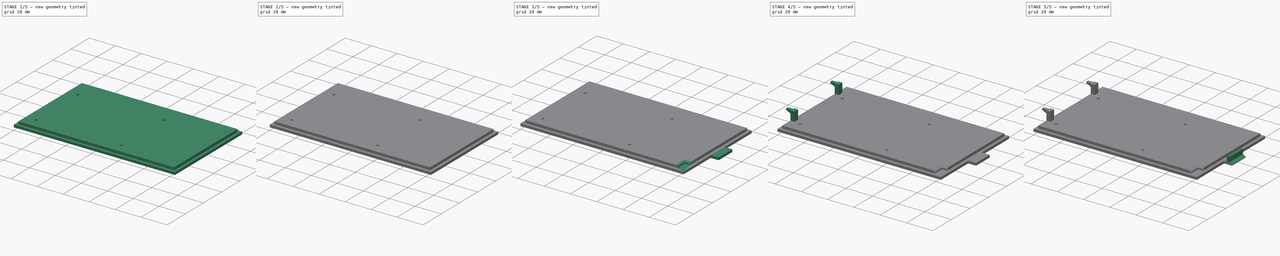
[diagram: build sequence overview — one tinted view per stage of 5, left to right]
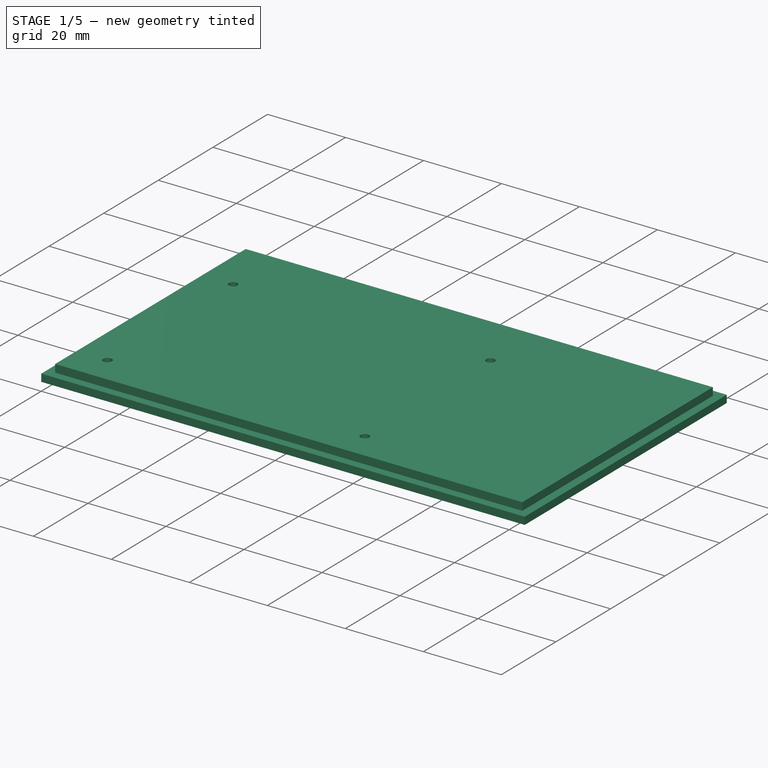
[diagram: stage 1 of 5 — iso view after this stage's code; geometry added in this stage tinted green]
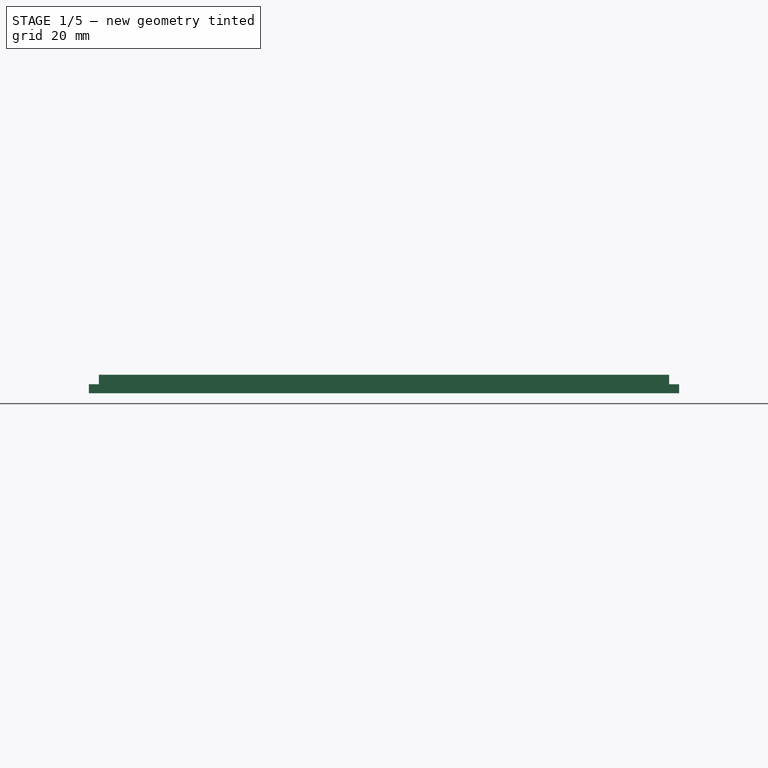
[diagram: stage 1 of 5 — front view after this stage's code; geometry added in this stage tinted green]
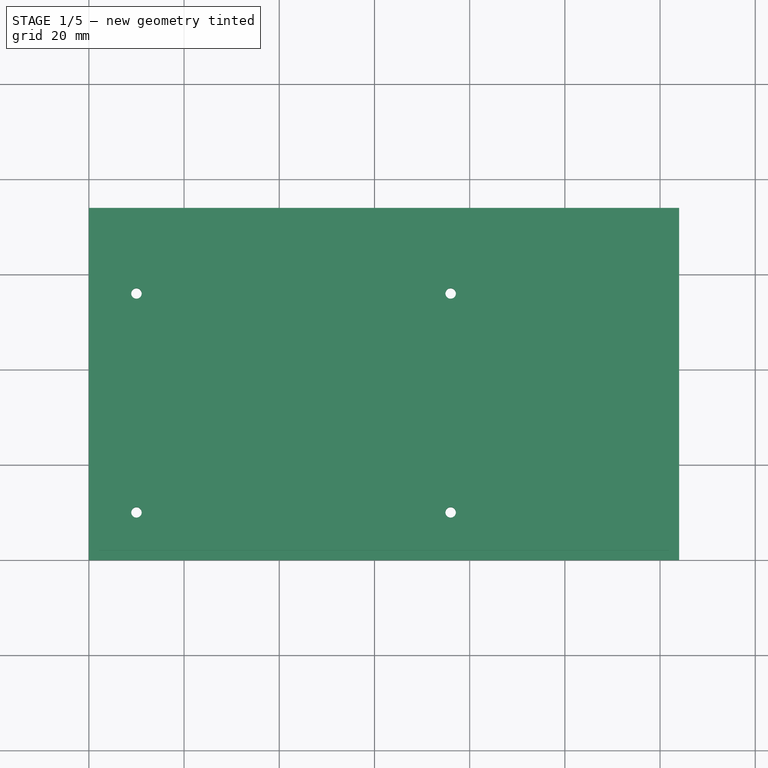
[diagram: stage 1 of 5 — top view after this stage's code; geometry added in this stage tinted green]
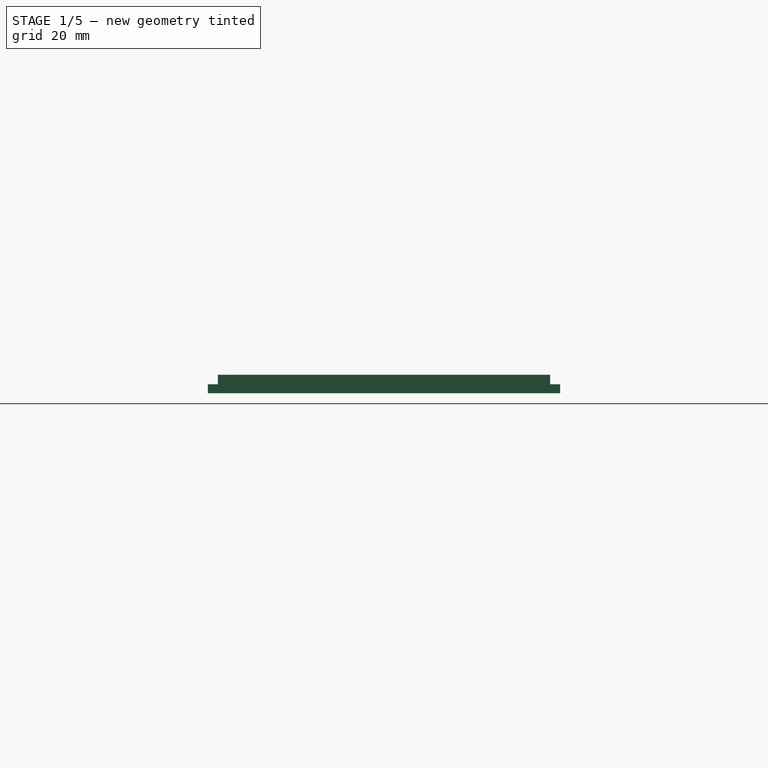
[diagram: stage 1 of 5 — right view after this stage's code; geometry added in this stage tinted green]
FCSTD DOCUMENT  (FreeCAD 0.19R24276 (Git))
Label: Airlogger Case Floor
License: All rights reserved
LicenseURL: http://en.wikipedia.org/wiki/All_rights_reserved
objects: Sketcher::SketchObject×8, PartDesign::Pad×6, PartDesign::Hole×4, PartDesign::Chamfer×3, PartDesign::Pocket×2, PartDesign::Fillet×1, PartDesign::Body×1
note: 41 computed .brp shape members not serialized (recipe doc carries the construction recipe); baked Part::Feature solids carry a one-line shape summary decoded from their .brp

FEATURE [Sketcher::SketchObject] Sketch
  FullyConstrained = true
  MapMode = 5
  Support = -> [XY_Plane]
  sketch-geometry (4):
    g0: LineSegment StartX=0 StartY=74 StartZ=0 EndX=124 EndY=74 EndZ=0
    g1: LineSegment StartX=124 StartY=74 StartZ=0 EndX=124 EndY=0 EndZ=0
    g2: LineSegment StartX=124 StartY=0 StartZ=0 EndX=0 EndY=0 EndZ=0
    g3: LineSegment StartX=0 StartY=0 StartZ=0 EndX=0 EndY=74 EndZ=0
  constraints (11):
    c: Coincident(g0,g1)
    c: Coincident(g1,g2)
    c: Coincident(g2,g3)
    c: Coincident(g3,g0)
    c: Horizontal(g0)
    c: Horizontal(g2)
    c: Vertical(g1)
    c: Vertical(g3)
    c: Coincident(g2,g-1)
    c: DistanceX(g0,g0) = 124
    c: DistanceY(g1,g1) = 74
FEATURE [PartDesign::Pad] Pad
  Direction = (1,1,1)
  Length = 1.9
  Length2 = 100
  Profile = -> Sketch
  Refine = true
  Type = 0
FEATURE [Sketcher::SketchObject] Sketch001
  FullyConstrained = true
  MapMode = 5
  Placement = pos=(0,0,1.9) rot=(0,0,1;0rad)
  Support = -> [Pad]
  sketch-geometry (4):
    g0: LineSegment StartX=2.1 StartY=71.9 StartZ=0 EndX=121.9 EndY=71.9 EndZ=0
    g1: LineSegment StartX=121.9 StartY=71.9 StartZ=0 EndX=121.9 EndY=2.1 EndZ=0
    g2: LineSegment StartX=121.9 StartY=2.1 StartZ=0 EndX=2.1 EndY=2.1 EndZ=0
    g3: LineSegment StartX=2.1 StartY=2.1 StartZ=0 EndX=2.1 EndY=71.9 EndZ=0
  constraints (12):
    c: Coincident(g0,g1)
    c: Coincident(g1,g2)
    c: Coincident(g2,g3)
    c: Coincident(g3,g0)
    c: Horizontal(g0)
    c: Horizontal(g2)
    c: Vertical(g1)
    c: Vertical(g3)
    c: DistanceX(g0,g0) = 119.8
    c: DistanceY(g1,g1) = 69.8
    c: DistanceY(g-1,g2) = 2.1
    c: DistanceX(g-1,g2) = 2.1
FEATURE [PartDesign::Pad] Pad001
  BaseFeature = -> Pad
  Direction = (1,1,1)
  Length = 2
  Length2 = 100
  Profile = -> Sketch001
  Refine = true
  Type = 0
FEATURE [Sketcher::SketchObject] Sketch002
  FullyConstrained = true
  MapMode = 5
  Placement = pos=(0,0,3.9) rot=(0,0,1;0rad)
  Support = -> [Pad001]
  sketch-geometry (4):
    g0: Circle CenterX=10 CenterY=56 CenterZ=0 NormalX=0 NormalY=0 NormalZ=1 AngleXU=0 Radius=1.1
    g1: Circle CenterX=76 CenterY=56 CenterZ=0 NormalX=0 NormalY=0 NormalZ=1 AngleXU=0 Radius=1.1
    g2: Circle CenterX=10 CenterY=10 CenterZ=0 NormalX=0 NormalY=0 NormalZ=1 AngleXU=0 Radius=1.1
    g3: Circle CenterX=76 CenterY=10 CenterZ=0 NormalX=0 NormalY=0 NormalZ=1 AngleXU=0 Radius=1.1
  constraints (12):
    c: Diameter(g0) = 2.2
    c: Equal(g0,g1) = 1
    c: Equal(g0,g2) = 1
    c: Equal(g0,g3) = 1
    c: Vertical(g2,g0)
    c: Horizontal(g1,g0)
    c: Vertical(g3,g1)
    c: Horizontal(g3,g2)
    c: DistanceX(g0,g1) = 66
    c: DistanceY(g2,g0) = 46
    c: DistanceX(g-1,g2) = 10
    c: DistanceY(g-1,g2) = 10
FEATURE [PartDesign::Pocket] Pocket
  BaseFeature = -> Pad001
  Length = 5
  Length2 = 100
  Profile = -> Sketch002
  Refine = true
  Type = 1
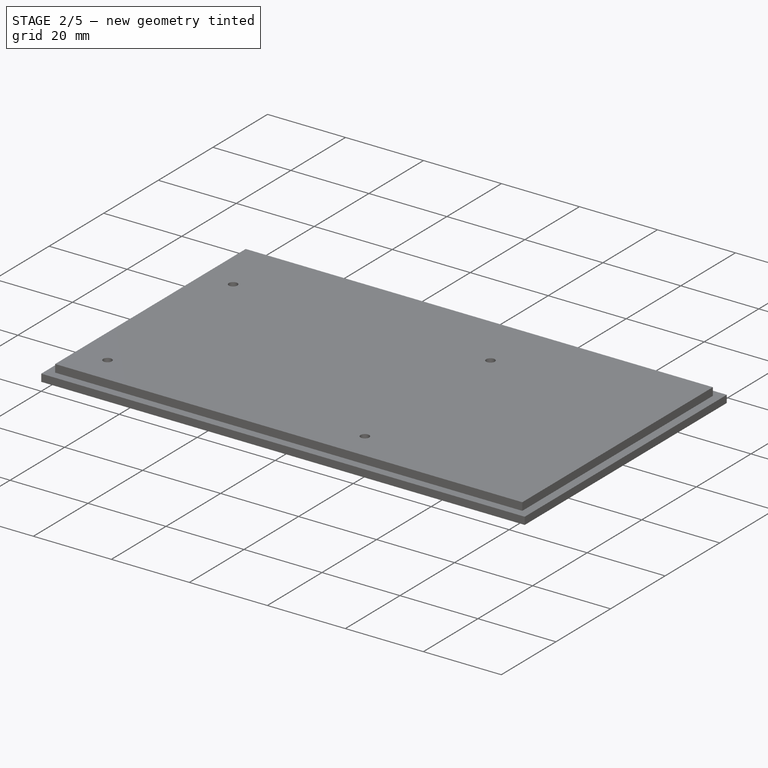
[diagram: stage 2 of 5 — iso view after this stage's code; geometry added in this stage tinted green]
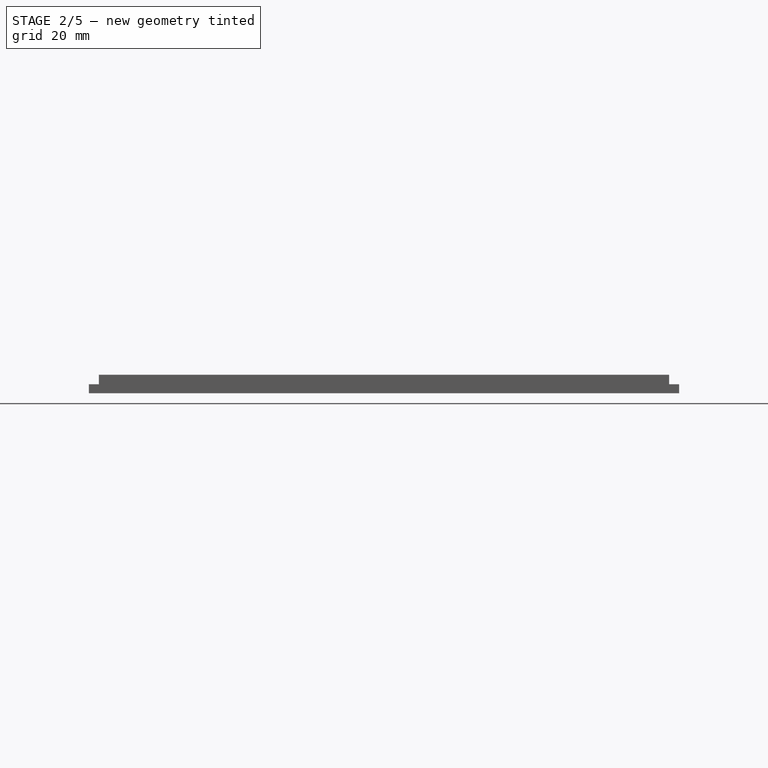
[diagram: stage 2 of 5 — front view after this stage's code; geometry added in this stage tinted green]
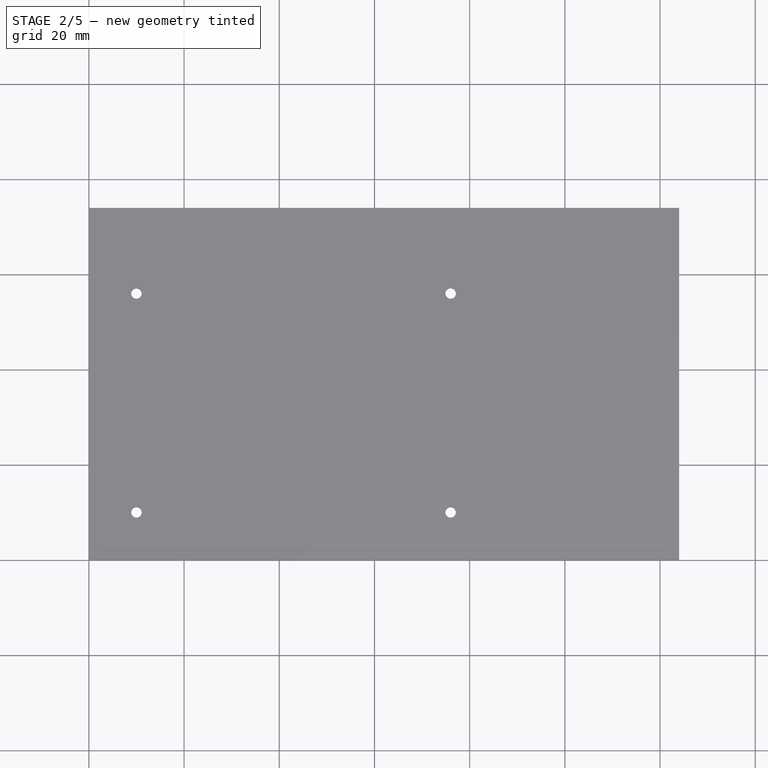
[diagram: stage 2 of 5 — top view after this stage's code; geometry added in this stage tinted green]
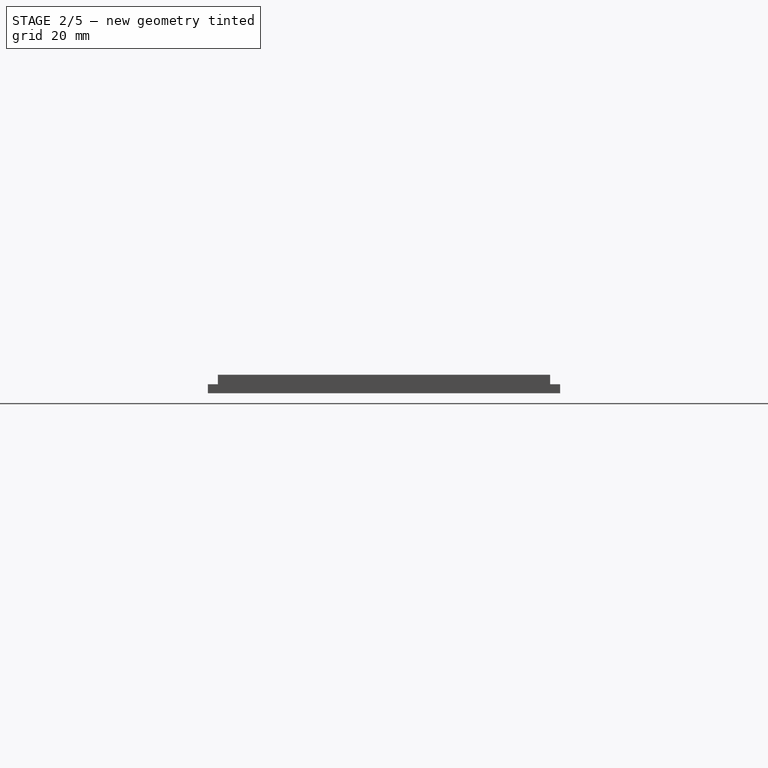
[diagram: stage 2 of 5 — right view after this stage's code; geometry added in this stage tinted green]
FEATURE [PartDesign::Hole] Hole
  BaseFeature = -> Pocket
  Depth = 1.5
  DepthType = 0
  Diameter = 4
  DrillForDepth = false
  DrillPoint = 0
  DrillPointAngle = 118
  HoleCutCountersinkAngle = 90
  HoleCutCustomValues = false
  HoleCutDepth = 0
  HoleCutDiameter = 6.1
  HoleCutType = 0
  ModelActualThread = false
  Profile = -> Pocket [Edge13]
  Refine = true
  Tapered = false
  TaperedAngle = 90
  ThreadAngle = 0
  ThreadClass = 0
  ThreadCutOffInner = 0
  ThreadCutOffOuter = 0
  ThreadDirection = 0
  ThreadFit = 0
  ThreadPitch = 0
  ThreadSize = 0
  ThreadType = 0
  Threaded = false
FEATURE [PartDesign::Hole] Hole001
  BaseFeature = -> Hole
  Depth = 1.5
  DepthType = 0
  Diameter = 4
  DrillForDepth = false
  DrillPoint = 0
  DrillPointAngle = 118
  HoleCutCountersinkAngle = 90
  HoleCutCustomValues = false
  HoleCutDepth = 0
  HoleCutDiameter = 6.1
  HoleCutType = 0
  ModelActualThread = false
  Profile = -> Hole [Edge12]
  Refine = true
  Tapered = false
  TaperedAngle = 90
  ThreadAngle = 0
  ThreadClass = 0
  ThreadCutOffInner = 0
  ThreadCutOffOuter = 0
  ThreadDirection = 0
  ThreadFit = 0
  ThreadPitch = 0
  ThreadSize = 0
  ThreadType = 0
  Threaded = false
FEATURE [PartDesign::Hole] Hole002
  BaseFeature = -> Hole001
  Depth = 1.5
  DepthType = 0
  Diameter = 4
  DrillForDepth = false
  DrillPoint = 0
  DrillPointAngle = 118
  HoleCutCountersinkAngle = 90
  HoleCutCustomValues = false
  HoleCutDepth = 0
  HoleCutDiameter = 6.1
  HoleCutType = 0
  ModelActualThread = false
  Profile = -> Hole001 [Edge14]
  Refine = true
  Tapered = false
  TaperedAngle = 90
  ThreadAngle = 0
  ThreadClass = 0
  ThreadCutOffInner = 0
  ThreadCutOffOuter = 0
  ThreadDirection = 0
  ThreadFit = 0
  ThreadPitch = 0
  ThreadSize = 0
  ThreadType = 0
  Threaded = false
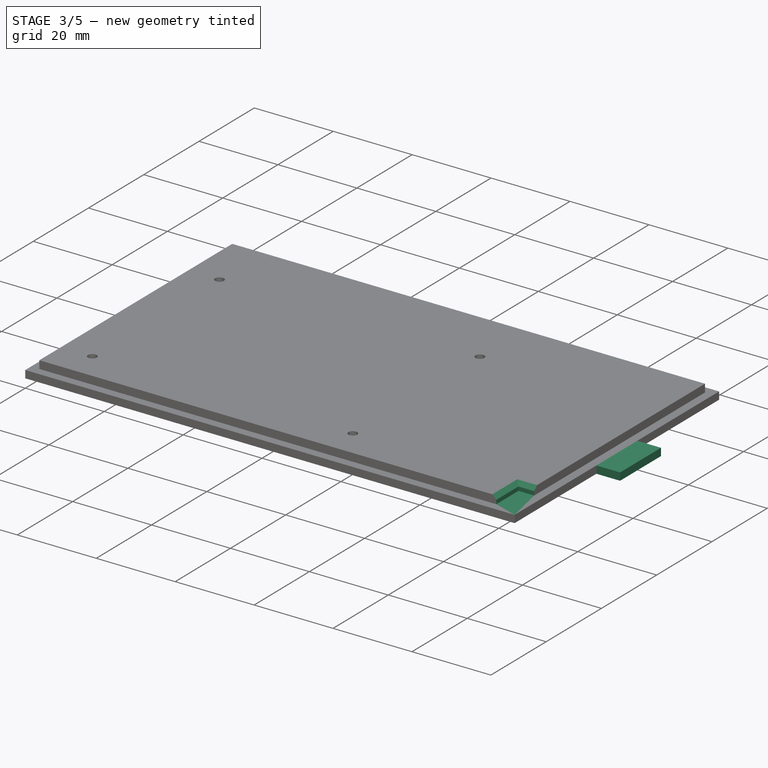
[diagram: stage 3 of 5 — iso view after this stage's code; geometry added in this stage tinted green]
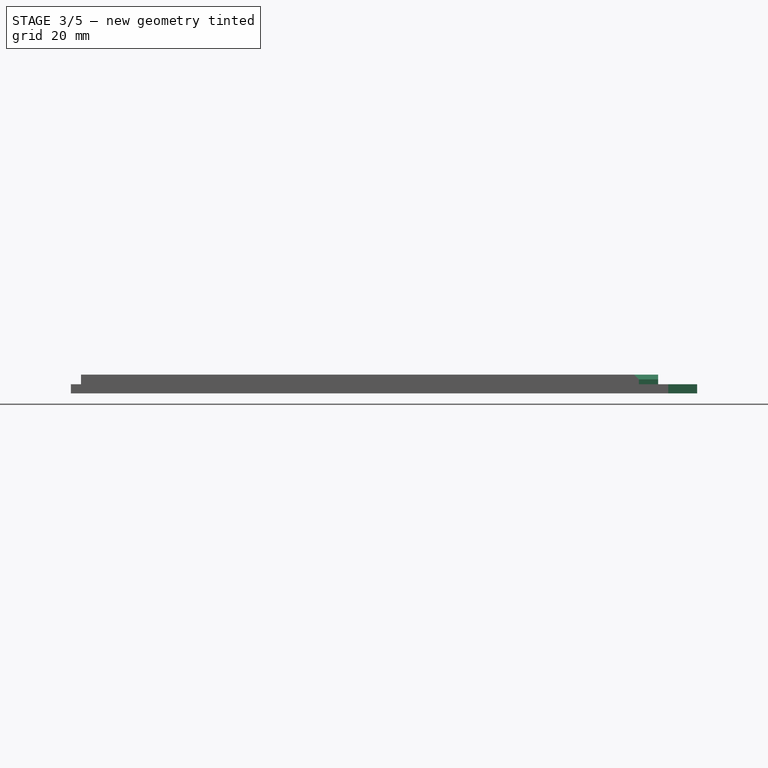
[diagram: stage 3 of 5 — front view after this stage's code; geometry added in this stage tinted green]
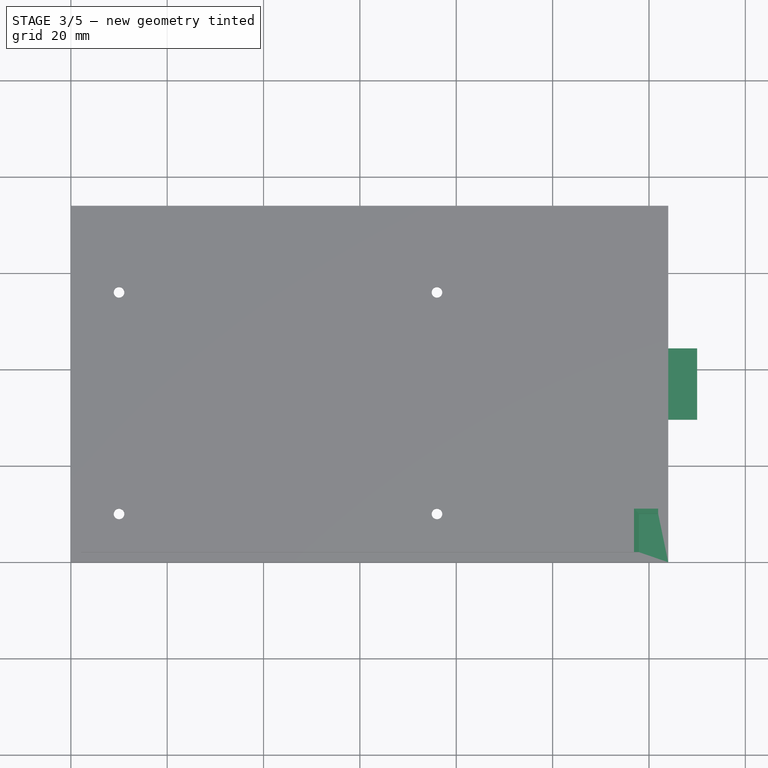
[diagram: stage 3 of 5 — top view after this stage's code; geometry added in this stage tinted green]
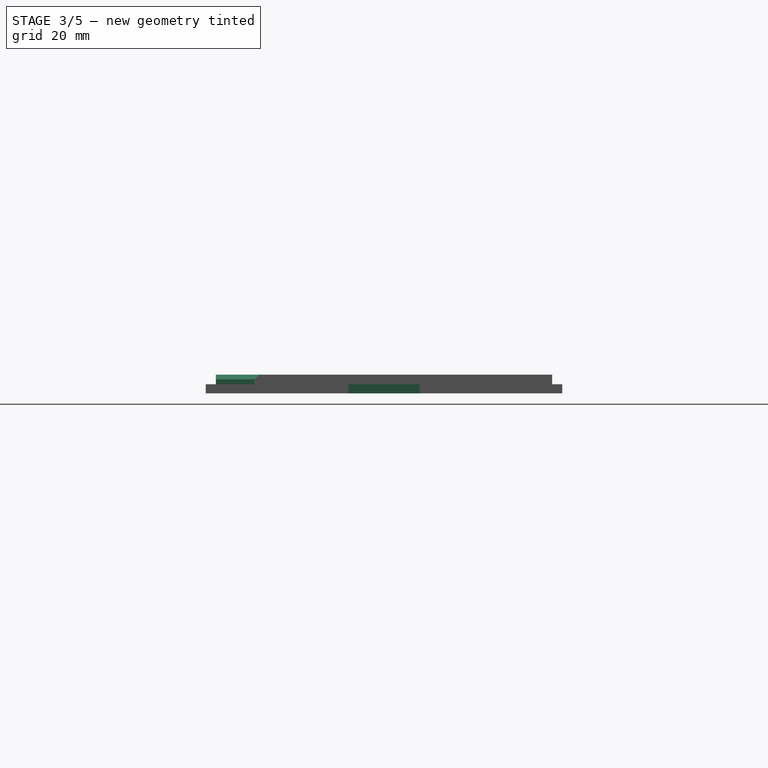
[diagram: stage 3 of 5 — right view after this stage's code; geometry added in this stage tinted green]
FEATURE [PartDesign::Hole] Hole003
  BaseFeature = -> Hole002
  Depth = 1.5
  DepthType = 0
  Diameter = 4
  DrillForDepth = false
  DrillPoint = 0
  DrillPointAngle = 118
  HoleCutCountersinkAngle = 90
  HoleCutCustomValues = false
  HoleCutDepth = 0
  HoleCutDiameter = 6.1
  HoleCutType = 0
  ModelActualThread = false
  Profile = -> Hole002 [Edge15]
  Refine = true
  Tapered = false
  TaperedAngle = 90
  ThreadAngle = 0
  ThreadClass = 0
  ThreadCutOffInner = 0
  ThreadCutOffOuter = 0
  ThreadDirection = 0
  ThreadFit = 0
  ThreadPitch = 0
  ThreadSize = 0
  ThreadType = 0
  Threaded = false
FEATURE [Sketcher::SketchObject] Sketch003
  ExternalGeometry = -> [Hole003]
  FullyConstrained = true
  MapMode = 5
  Placement = pos=(124,0,0) rot=(0.57735,0.57735,0.57735;2.0944rad)
  Support = -> [Hole003]
  sketch-geometry (6):
    g0: LineSegment StartX=29.6 StartY=0 StartZ=0 EndX=44.4 EndY=0 EndZ=0
    g1: LineSegment StartX=44.4 StartY=0 StartZ=0 EndX=44.4 EndY=1.9 EndZ=0
    g2: LineSegment StartX=44.4 StartY=1.9 StartZ=0 EndX=29.6 EndY=1.9 EndZ=0
    g3: LineSegment StartX=29.6 StartY=1.9 StartZ=0 EndX=29.6 EndY=0 EndZ=0
    g4: LineSegment StartX=29.6 StartY=0 StartZ=0 EndX=0 EndY=0 EndZ=0
    g5: LineSegment StartX=44.4 StartY=0 StartZ=0 EndX=74 EndY=0 EndZ=0
  constraints (16):
    c: Coincident(g0,g1)
    c: Coincident(g1,g2)
    c: Coincident(g2,g3)
    c: Coincident(g3,g0)
    c: Horizontal(g0)
    c: Horizontal(g2)
    c: Vertical(g1)
    c: Vertical(g3)
    c: PointOnObject(g0,g-3)
    c: DistanceX(g2,g2) = 14.8
    c: DistanceY(g1,g1) = 1.9
    c: Coincident(g4,g0)
    c: Coincident(g4,g-1)
    c: Coincident(g5,g0)
    c: Coincident(g5,g-3)
    c: Equal(g4,g5)
FEATURE [PartDesign::Pad] Pad002
  BaseFeature = -> Hole003
  Direction = (1,1,1)
  Length = 6
  Length2 = 100
  Profile = -> Sketch003
  Refine = true
  Type = 0
FEATURE [Sketcher::SketchObject] Sketch004
  ExternalGeometry = -> [Pad002]
  FullyConstrained = true
  MapMode = 5
  Placement = pos=(0,2.1,0) rot=(1,0,0;1.5708rad)
  Support = -> [Pad002]
  sketch-geometry (4):
    g0: LineSegment StartX=121.9 StartY=3.9 StartZ=0 EndX=117.9 EndY=3.9 EndZ=0
    g1: LineSegment StartX=117.9 StartY=3.9 StartZ=0 EndX=117.9 EndY=1.9 EndZ=0
    g2: LineSegment StartX=117.9 StartY=1.9 StartZ=0 EndX=121.9 EndY=1.9 EndZ=0
    g3: LineSegment StartX=121.9 StartY=1.9 StartZ=0 EndX=121.9 EndY=3.9 EndZ=0
  constraints (10):
    c: Coincident(g0,g1)
    c: Coincident(g1,g2)
    c: Coincident(g2,g3)
    c: Coincident(g3,g0)
    c: Horizontal(g0)
    c: Horizontal(g2)
    c: Vertical(g1)
    c: Coincident(g0,g-3)
    c: DistanceX(g0,g0) = 4
    c: Coincident(g2,g-3)
FEATURE [PartDesign::Pocket] Pocket001
  BaseFeature = -> Pad002
  Length = 8
  Length2 = 100
  Profile = -> Sketch004
  Refine = true
  Type = 0
FEATURE [PartDesign::Chamfer] Chamfer
  Angle = 45
  Base = -> Pocket001 [Edge56,Edge57]
  BaseFeature = -> Pocket001
  ChamferType = 0
  FlipDirection = false
  Refine = true
  Size = 1
  Size2 = 1
  SupportTransform = false
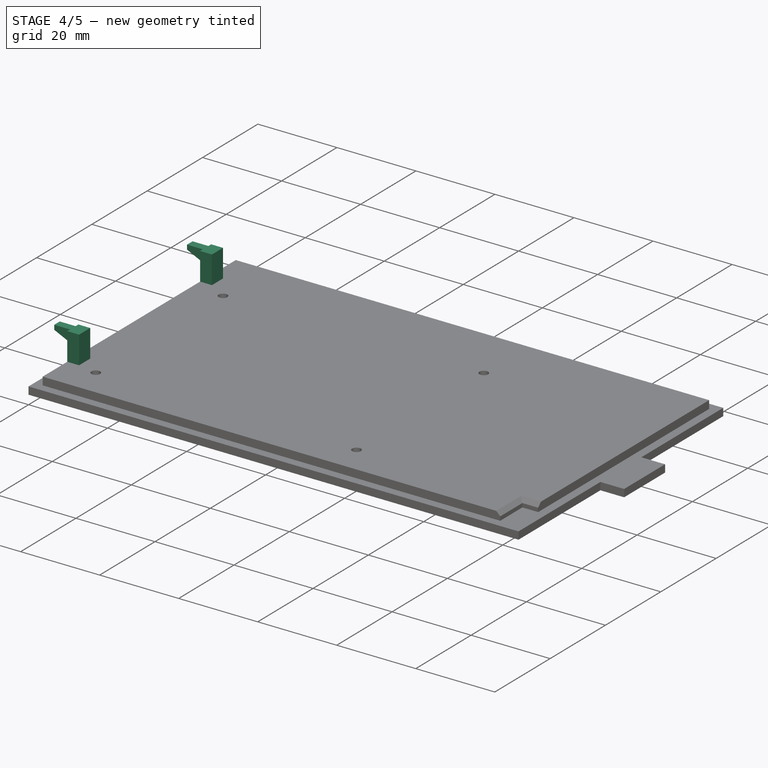
[diagram: stage 4 of 5 — iso view after this stage's code; geometry added in this stage tinted green]
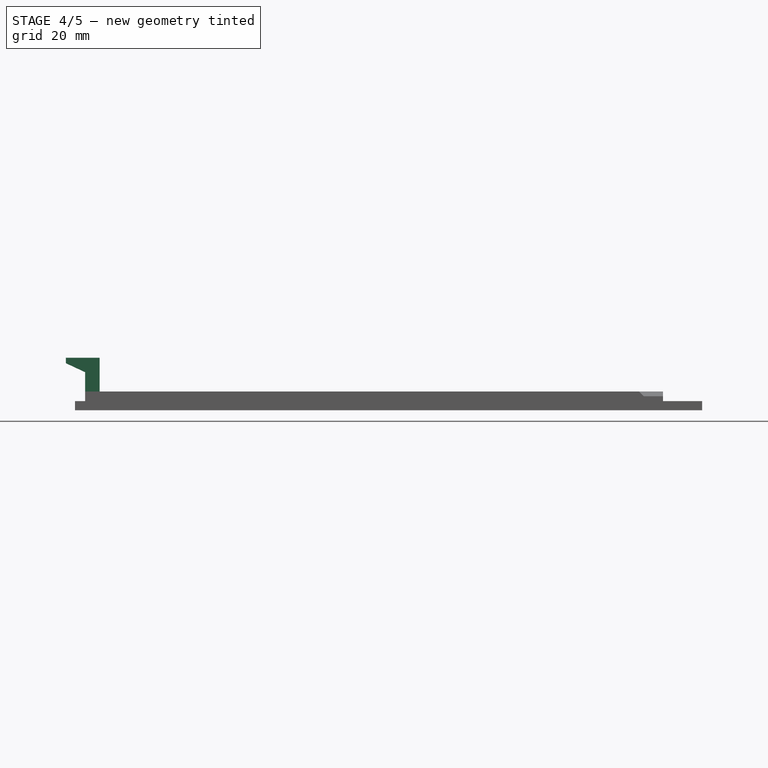
[diagram: stage 4 of 5 — front view after this stage's code; geometry added in this stage tinted green]
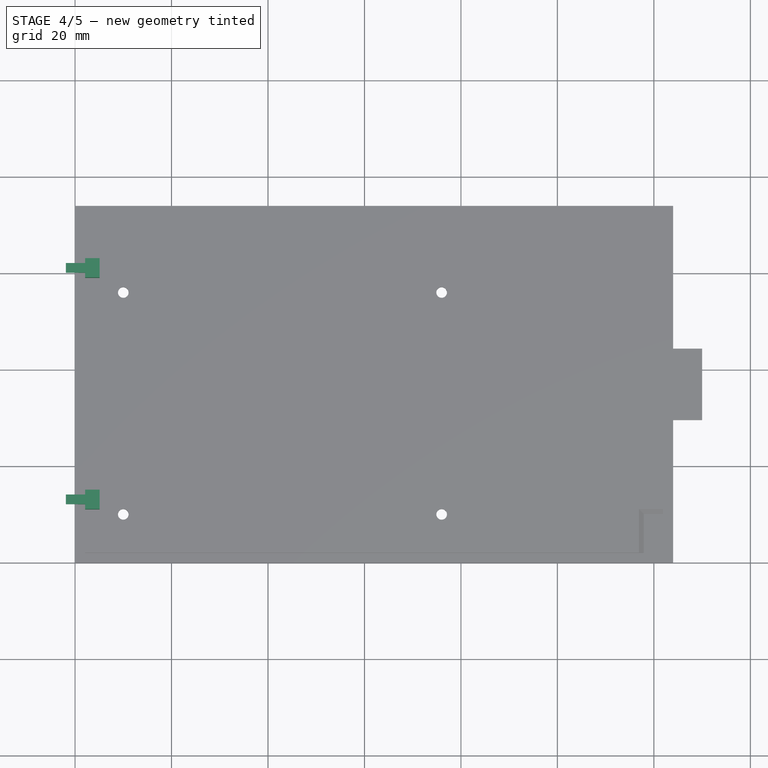
[diagram: stage 4 of 5 — top view after this stage's code; geometry added in this stage tinted green]
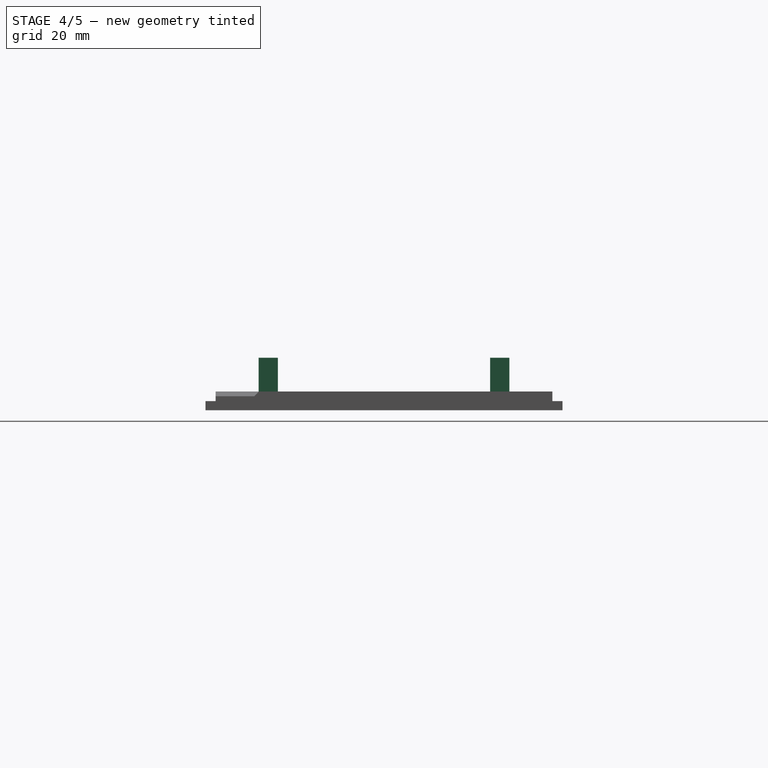
[diagram: stage 4 of 5 — right view after this stage's code; geometry added in this stage tinted green]
FEATURE [Sketcher::SketchObject] Sketch005
  ExternalGeometry = -> [Chamfer]
  FullyConstrained = true
  MapMode = 5
  Placement = pos=(0,0,3.9) rot=(0,0,1;0rad)
  Support = -> [Chamfer]
  sketch-geometry (8):
    g0: LineSegment StartX=2.1 StartY=11 StartZ=0 EndX=5.1 EndY=11 EndZ=0
    g1: LineSegment StartX=5.1 StartY=11 StartZ=0 EndX=5.1 EndY=15 EndZ=0
    g2: LineSegment StartX=5.1 StartY=15 StartZ=0 EndX=2.1 EndY=15 EndZ=0
    g3: LineSegment StartX=2.1 StartY=15 StartZ=0 EndX=2.1 EndY=11 EndZ=0
    g4: LineSegment StartX=2.1 StartY=59 StartZ=0 EndX=5.1 EndY=59 EndZ=0
    g5: LineSegment StartX=5.1 StartY=59 StartZ=0 EndX=5.1 EndY=63 EndZ=0
    g6: LineSegment StartX=5.1 StartY=63 StartZ=0 EndX=2.1 EndY=63 EndZ=0
    g7: LineSegment StartX=2.1 StartY=63 StartZ=0 EndX=2.1 EndY=59 EndZ=0
  constraints (24):
    c: Coincident(g0,g1)
    c: Coincident(g1,g2)
    c: Coincident(g2,g3)
    c: Coincident(g3,g0)
    c: Horizontal(g0)
    c: Horizontal(g2)
    c: Vertical(g1)
    c: Vertical(g3)
    c: Vertical(g0,g-3)
    c: DistanceY(g-1,g0) = 11
    c: DistanceY(g3,g3) = 4
    c: DistanceX(g2,g2) = 3
    c: Coincident(g4,g5)
    c: Coincident(g5,g6)
    c: Coincident(g6,g7)
    c: Coincident(g7,g4)
    c: Horizontal(g4)
    c: Horizontal(g6)
    c: Vertical(g5)
    c: Vertical(g7)
    c: Equal(g3,g7) = 2
    c: Equal(g2,g6) = 3
    c: DistanceY(g6,g-4) = 11
    c: Vertical(g6,g-3)
FEATURE [PartDesign::Pad] Pad003
  BaseFeature = -> Chamfer
  Direction = (1,1,1)
  Length = 7
  Length2 = 100
  Profile = -> Sketch005
  Refine = true
  Type = 0
FEATURE [Sketcher::SketchObject] Sketch006
  ExternalGeometry = -> [Pad003]
  FullyConstrained = true
  MapMode = 5
  Placement = pos=(2.1,0,0) rot=(0.57735,-0.57735,-0.57735;2.0944rad)
  Support = -> [Pad003]
  sketch-geometry (12):
    g0: LineSegment StartX=-62 StartY=10.9 StartZ=0 EndX=-60 EndY=10.9 EndZ=0
    g1: LineSegment StartX=-60 StartY=10.9 StartZ=0 EndX=-60 EndY=7.9 EndZ=0
    g2: LineSegment StartX=-60 StartY=7.9 StartZ=0 EndX=-62 EndY=7.9 EndZ=0
    g3: LineSegment StartX=-62 StartY=7.9 StartZ=0 EndX=-62 EndY=10.9 EndZ=0
    g4: LineSegment StartX=-14 StartY=10.9 StartZ=0 EndX=-12 EndY=10.9 EndZ=0
    g5: LineSegment StartX=-12 StartY=10.9 StartZ=0 EndX=-12 EndY=7.9 EndZ=0
    g6: LineSegment StartX=-12 StartY=7.9 StartZ=0 EndX=-14 EndY=7.9 EndZ=0
    g7: LineSegment StartX=-14 StartY=7.9 StartZ=0 EndX=-14 EndY=10.9 EndZ=0
    g8: LineSegment StartX=-62 StartY=10.9 StartZ=0 EndX=-63 EndY=10.9 EndZ=0
    g9: LineSegment StartX=-60 StartY=10.9 StartZ=0 EndX=-59 EndY=10.9 EndZ=0
    g10: LineSegment StartX=-14 StartY=10.9 StartZ=0 EndX=-15 EndY=10.9 EndZ=0
    g11: LineSegment StartX=-12 StartY=10.9 StartZ=0 EndX=-11 EndY=10.9 EndZ=0
  constraints (32):
    c: Coincident(g0,g1)
    c: Coincident(g1,g2)
    c: Coincident(g2,g3)
    c: Coincident(g3,g0)
    c: Horizontal(g0)
    c: Horizontal(g2)
    c: Vertical(g1)
    c: Vertical(g3)
    c: PointOnObject(g0,g-3)
    c: Coincident(g4,g5)
    c: Coincident(g5,g6)
    c: Coincident(g6,g7)
    c: Coincident(g7,g4)
    c: Horizontal(g4)
    c: Horizontal(g6)
    c: Vertical(g5)
    c: Vertical(g7)
    c: PointOnObject(g4,g-4)
    c: DistanceY(g3,g3) = 3
    c: Coincident(g8,g0)
    c: Coincident(g8,g-3)
    c: Coincident(g9,g0)
    c: Coincident(g9,g-3)
    c: Equal(g8,g9)
    c: DistanceX(g0,g0) = 2
    c: Coincident(g10,g4)
    c: Coincident(g10,g-4)
    c: Coincident(g11,g4)
    c: Coincident(g11,g-4)
    c: Equal(g11,g10)
    c: DistanceX(g4,g4) = 2
    c: DistanceY(g5,g5) = 3
FEATURE [PartDesign::Pad] Pad004
  BaseFeature = -> Pad003
  Direction = (1,1,1)
  Length = 4
  Length2 = 100
  Profile = -> Sketch006
  Refine = true
  Type = 0
FEATURE [PartDesign::Chamfer] Chamfer001
  Angle = 25
  Base = -> Pad004 [Edge80,Edge87]
  BaseFeature = -> Pad004
  ChamferType = 2
  FlipDirection = false
  Refine = true
  Size = 3.99
  Size2 = 1
  SupportTransform = false
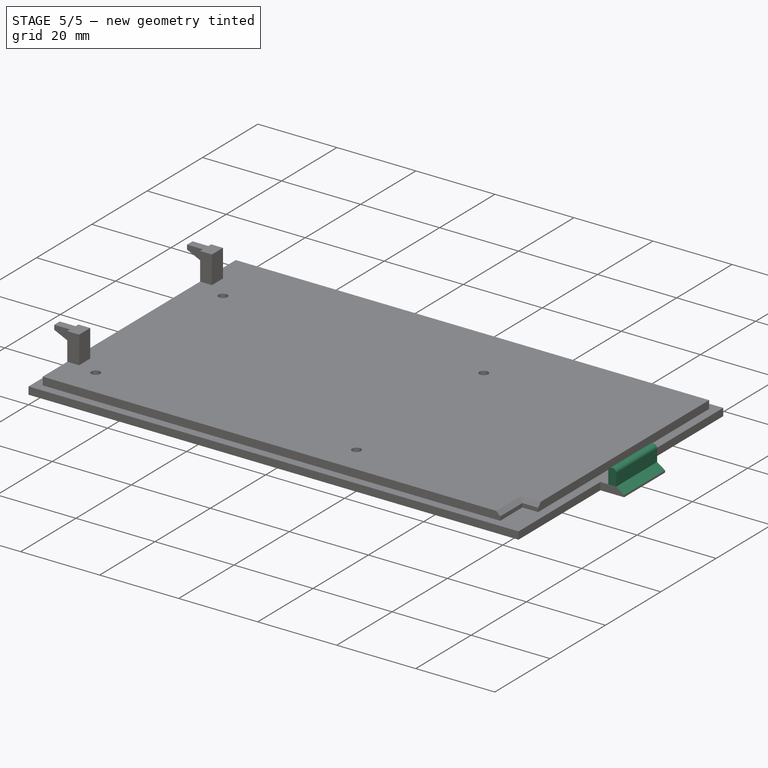
[diagram: stage 5 of 5 — iso view after this stage's code; geometry added in this stage tinted green]
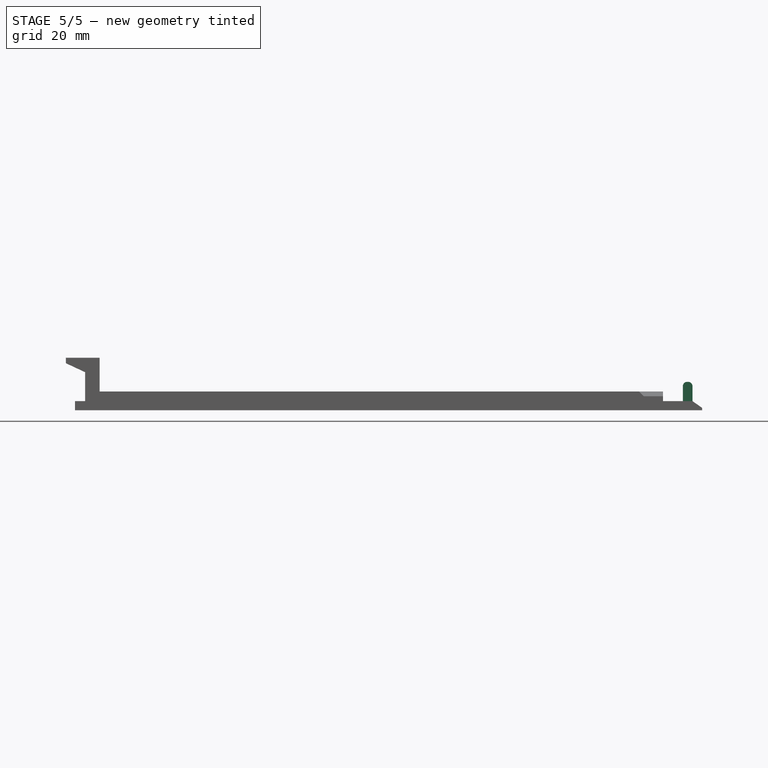
[diagram: stage 5 of 5 — front view after this stage's code; geometry added in this stage tinted green]
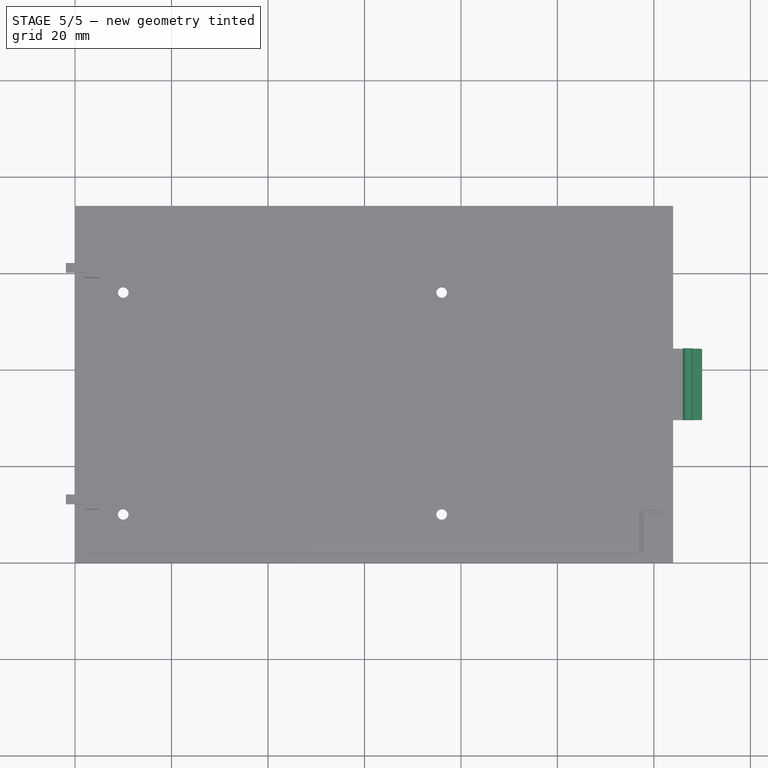
[diagram: stage 5 of 5 — top view after this stage's code; geometry added in this stage tinted green]
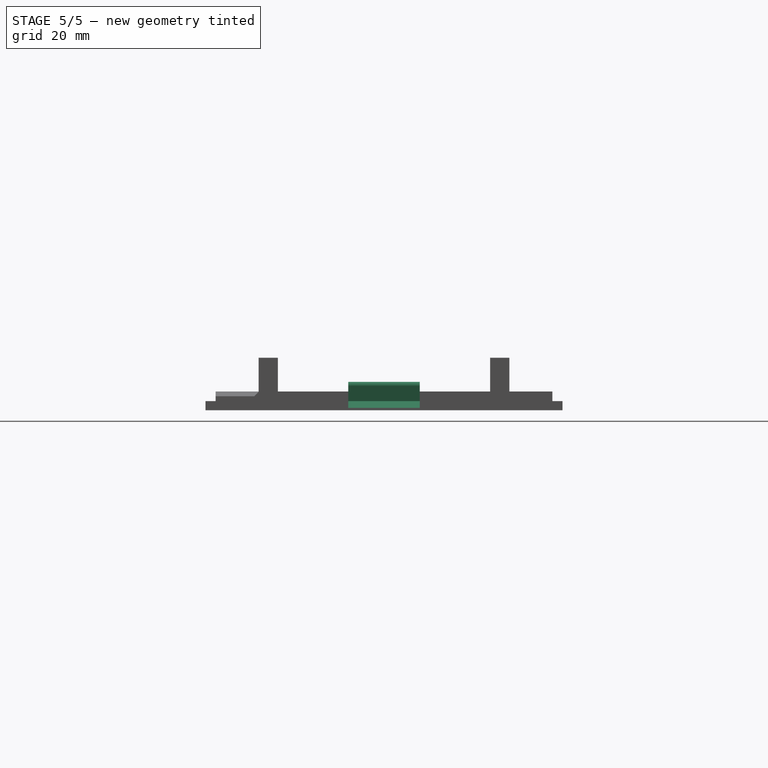
[diagram: stage 5 of 5 — right view after this stage's code; geometry added in this stage tinted green]
FEATURE [Sketcher::SketchObject] Sketch007
  ExternalGeometry = -> [Chamfer001]
  FullyConstrained = true
  MapMode = 5
  Placement = pos=(0,0,1.9) rot=(0,0,1;0rad)
  Support = -> [Chamfer001]
  sketch-geometry (4):
    g0: LineSegment StartX=126 StartY=44.4 StartZ=0 EndX=128 EndY=44.4 EndZ=0
    g1: LineSegment StartX=128 StartY=44.4 StartZ=0 EndX=128 EndY=29.6 EndZ=0
    g2: LineSegment StartX=128 StartY=29.6 StartZ=0 EndX=126 EndY=29.6 EndZ=0
    g3: LineSegment StartX=126 StartY=29.6 StartZ=0 EndX=126 EndY=44.4 EndZ=0
  constraints (12):
    c: Coincident(g0,g1)
    c: Coincident(g1,g2)
    c: Coincident(g2,g3)
    c: Coincident(g3,g0)
    c: Horizontal(g0)
    c: Horizontal(g2)
    c: Vertical(g1)
    c: Vertical(g3)
    c: PointOnObject(g0,g-3)
    c: PointOnObject(g1,g-4)
    c: DistanceX(g-4,g2) = 2
    c: DistanceX(g0,g0) = 2
FEATURE [PartDesign::Pad] Pad005
  BaseFeature = -> Chamfer001
  Direction = (1,1,1)
  Length = 4
  Length2 = 100
  Profile = -> Sketch007
  Refine = true
  Type = 0
FEATURE [PartDesign::Chamfer] Chamfer002
  Angle = 55
  Base = -> Pad005 [Edge120]
  BaseFeature = -> Pad005
  ChamferType = 2
  FlipDirection = false
  Refine = true
  Size = 1.4
  Size2 = 1
  SupportTransform = false
FEATURE [PartDesign::Fillet] Fillet
  Base = -> Chamfer002 [Edge32,Edge33]
  BaseFeature = -> Chamfer002
  Radius = 0.9
  Refine = true
  SupportTransform = false
FEATURE [PartDesign::Body] Body
  Group = -> [Sketch,Pad,Sketch001,Pad001,Sketch002,Pocket,Hole,Hole001,Hole002,Hole003,Sketch003,Pad002,Sketch004,Pocket001,Chamfer,Sketch005,Pad003,Sketch006,Pad004,Chamfer001,Sketch007,Pad005,Chamfer002,Fillet]
  Origin = -> Origin
  Tip = -> Fillet
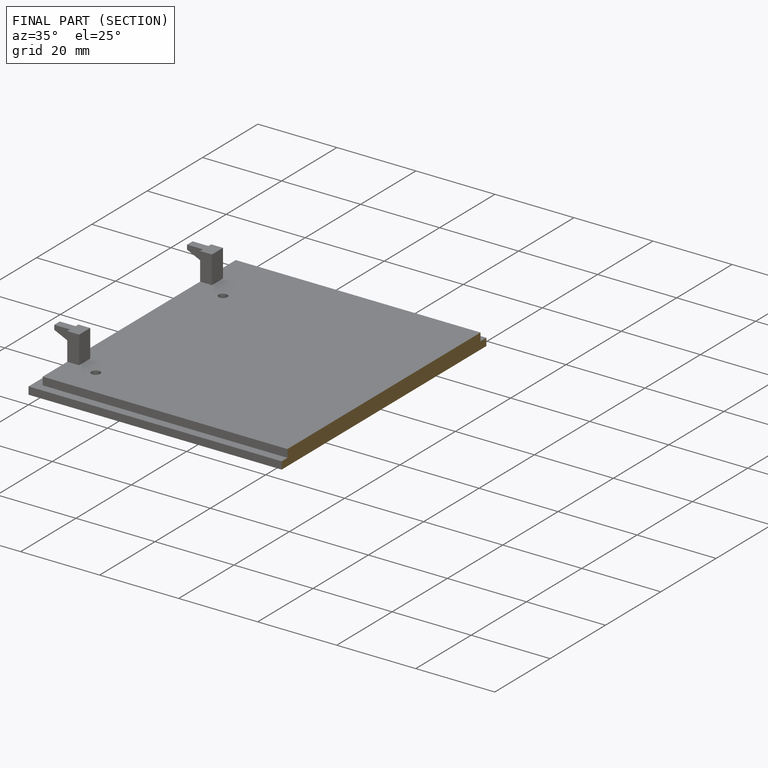
[diagram: finished part — half-section view (interior)]
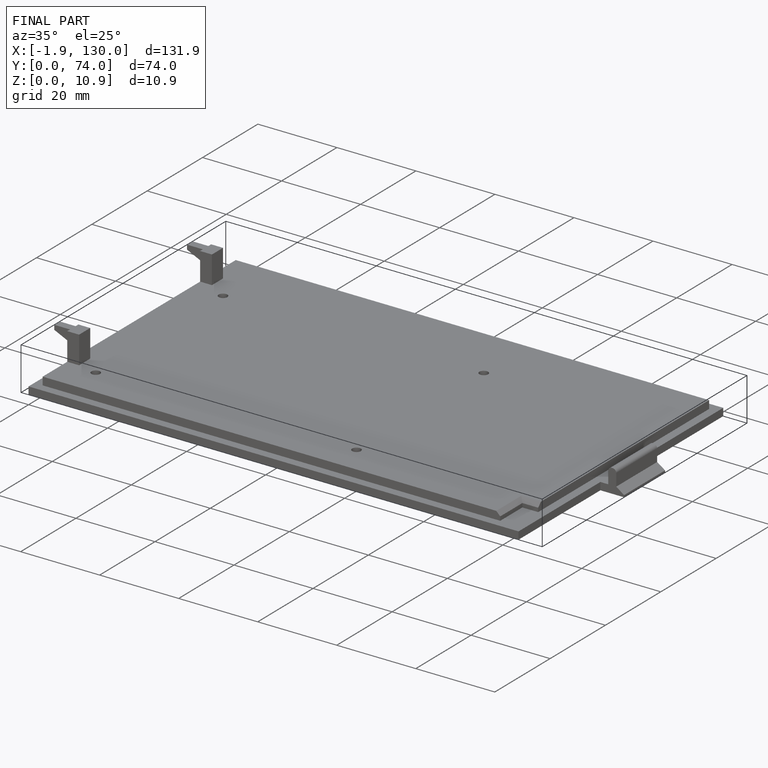
[diagram: finished part — iso view with bounding-box wireframe]
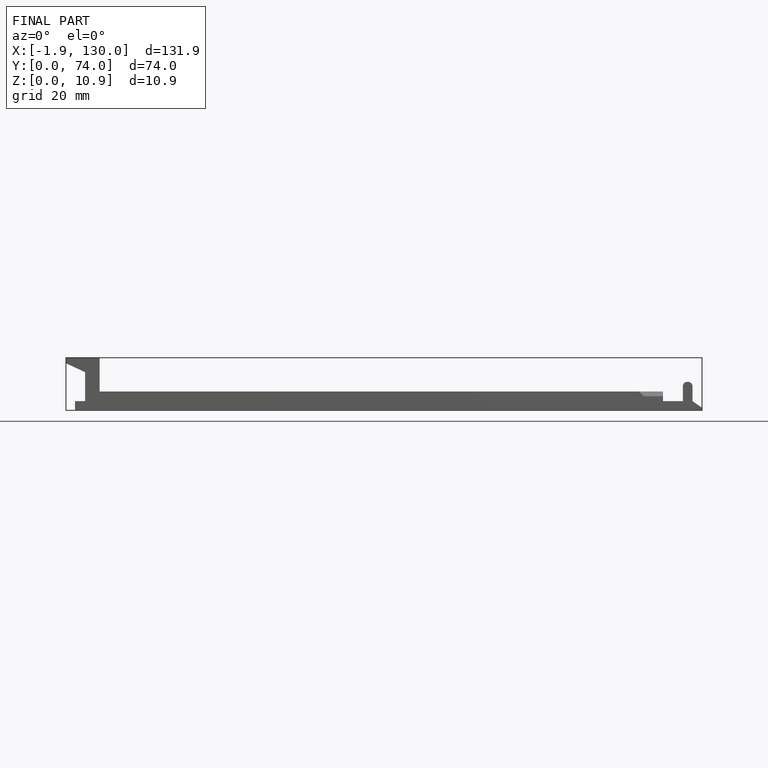
[diagram: finished part — front view with bounding-box wireframe]
